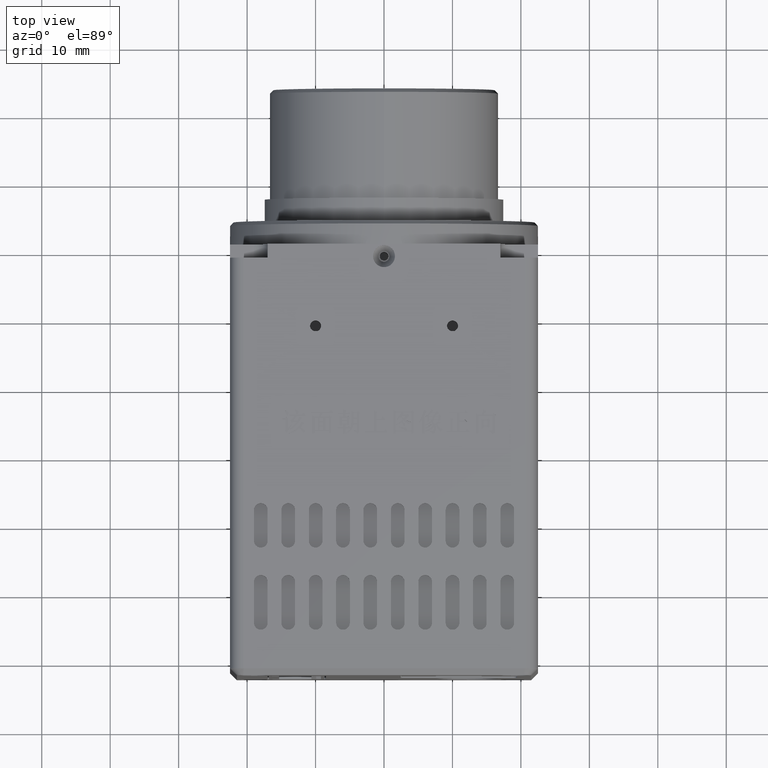
[diagram: clean part render]
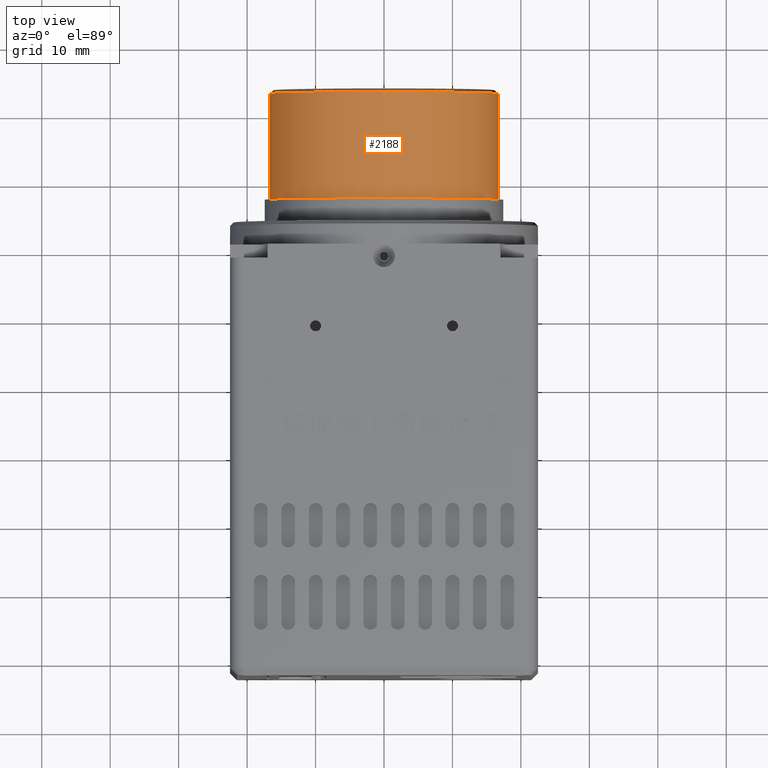
[diagram: same view with one face highlighted and labeled with its STEP entity id]
A machine part, top view. The second image highlights one B-rep face of the part: STEP entity #2188.
In plain terms, the highlighted cylindrical surface (bore or boss wall) has radius 16.65 mm, axis along (0, 1, 0).
Its self-contained STEP definition (entity closure, byte-faithful):
#2188 = ADVANCED_FACE ( 'NONE', ( #34656, #83298 ), #49177, .T. ) ;
#5813 = EDGE_LOOP ( 'NONE', ( #27727 ) ) ;
#7434 = DIRECTION ( 'NONE',  ( 0.000000000000000000, 0.000000000000000000, 1.000000000000000000 ) ) ;
#8406 = DIRECTION ( 'NONE',  ( 0.000000000000000000, 0.000000000000000000, 1.000000000000000000 ) ) ;
#10919 = VERTEX_POINT ( 'NONE', #52109 ) ;
#15184 = CIRCLE ( 'NONE', #88406, 16.65000000000999947 ) ;
#21735 = AXIS2_PLACEMENT_3D ( 'NONE', #68750, #83219, #7434 ) ;
#22119 = EDGE_CURVE ( 'NONE', #37730, #37730, #62075, .T. ) ;
#27727 = ORIENTED_EDGE ( 'NONE', *, *, #22119, .T. ) ;
#30373 = DIRECTION ( 'NONE',  ( 0.000000000000000000, 1.000000000000000000, 0.000000000000000000 ) ) ;
#31738 = ORIENTED_EDGE ( 'NONE', *, *, #43395, .T. ) ;
#34656 = FACE_OUTER_BOUND ( 'NONE', #48297, .T. ) ;
#37730 = VERTEX_POINT ( 'NONE', #53617 ) ;
#43395 = EDGE_CURVE ( 'NONE', #10919, #10919, #15184, .T. ) ;
#47793 = DIRECTION ( 'NONE',  ( 0.000000000000000000, 1.000000000000000000, 0.000000000000000000 ) ) ;
#48297 = EDGE_LOOP ( 'NONE', ( #31738 ) ) ;
#49177 = CYLINDRICAL_SURFACE ( 'NONE', #85603, 16.65000000000999947 ) ;
#52109 = CARTESIAN_POINT ( 'NONE',  ( -2.084271784497000633E-06, 27.73019999999999641, 16.65000452544679987 ) ) ;
#53617 = CARTESIAN_POINT ( 'NONE',  ( -2.084271784497000633E-06, 43.23019999999500129, 16.65000452544679987 ) ) ;
#54803 = CARTESIAN_POINT ( 'NONE',  ( -2.084271784497000633E-06, 27.42019999999999769, 4.525436798704000192E-06 ) ) ;
#62075 = CIRCLE ( 'NONE', #21735, 16.65000000000999947 ) ;
#62261 = DIRECTION ( 'NONE',  ( 0.000000000000000000, 0.000000000000000000, 1.000000000000000000 ) ) ;
#68750 = CARTESIAN_POINT ( 'NONE',  ( -2.084271784497000633E-06, 43.23019999999500129, 4.525436798704000192E-06 ) ) ;
#73396 = CARTESIAN_POINT ( 'NONE',  ( -2.084271784497000633E-06, 27.73019999999999641, 4.525436798704000192E-06 ) ) ;
#83219 = DIRECTION ( 'NONE',  ( -0.000000000000000000, -1.000000000000000000, -0.000000000000000000 ) ) ;
#83298 = FACE_OUTER_BOUND ( 'NONE', #5813, .T. ) ;
#85603 = AXIS2_PLACEMENT_3D ( 'NONE', #54803, #47793, #62261 ) ;
#88406 = AXIS2_PLACEMENT_3D ( 'NONE', #73396, #30373, #8406 ) ;